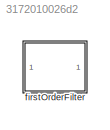
MODEL slx_3172010026d2
KIND library
CONFIG AbsTol = auto
CONFIG EnableMultiTasking = off
CONFIG FixedStep = auto
CONFIG MaxStep = auto
CONFIG MinStep = auto
CONFIG RelTol = 1e-3
CONFIG SampleTimeConstraint = Unconstrained
CONFIG Solver = VariableStepAuto
CONFIG SolverName = VariableStepAuto
CONFIG StartTime = 0.0
CONFIG StopTime = 10.0
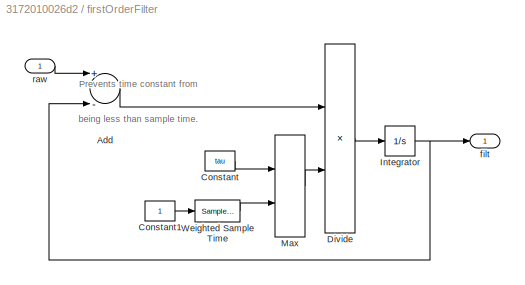
BLOCK [SubSystem] firstOrderFilter
  MinAlgLoopOccurrences = on
  Ports = [1, 1]
  RequestExecContextInheritance = off
  TreatAsAtomicUnit = on
BLOCK [Sum] firstOrderFilter/Add
  InputSameDT = off
  Inputs = +-
  OutDataTypeStr = Inherit: Inherit via internal rule
  Ports = [2, 1]
  SaturateOnIntegerOverflow = off
BLOCK [Constant] firstOrderFilter/Constant
  Value = tau
BLOCK [Constant] firstOrderFilter/Constant1
BLOCK [Product] firstOrderFilter/Divide
  InputSameDT = off
  Inputs = */
  OutDataTypeStr = Inherit: Inherit via internal rule
  Ports = [2, 1]
  RndMeth = Floor
  SaturateOnIntegerOverflow = off
BLOCK [Integrator] firstOrderFilter/Integrator
  InitialCondition = ic
  Ports = [1, 1]
BLOCK [MinMax] firstOrderFilter/Max
  Function = max
  InputSameDT = off
  Inputs = 2
  Ports = [2, 1]
  SaturateOnIntegerOverflow = off
BLOCK [SampleTimeMath] firstOrderFilter/Weighted Sample Time
  TsampMathOp = Ts Only
BLOCK [Outport] firstOrderFilter/filt
  IconDisplay = Port number
BLOCK [Inport] firstOrderFilter/raw
  IconDisplay = Port number
ANNOTATION firstOrderFilter: Prevents time constant from being less than sample time.
LINE firstOrderFilter/Add:1 -> firstOrderFilter/Divide:1
LINE firstOrderFilter/Constant1:1 -> firstOrderFilter/Weighted Sample Time:1
LINE firstOrderFilter/Constant:1 -> firstOrderFilter/Max:1
LINE firstOrderFilter/Divide:1 -> firstOrderFilter/Integrator:1
NET firstOrderFilter/Integrator:1 -> firstOrderFilter/Add:2, firstOrderFilter/filt:1
LINE firstOrderFilter/Max:1 -> firstOrderFilter/Divide:2
LINE firstOrderFilter/Weighted Sample Time:1 -> firstOrderFilter/Max:2
LINE firstOrderFilter/raw:1 -> firstOrderFilter/Add:1
note: NET lines group one-source signal fan-out (src -> all destinations, sorted); 1:1 wires keep LINE
